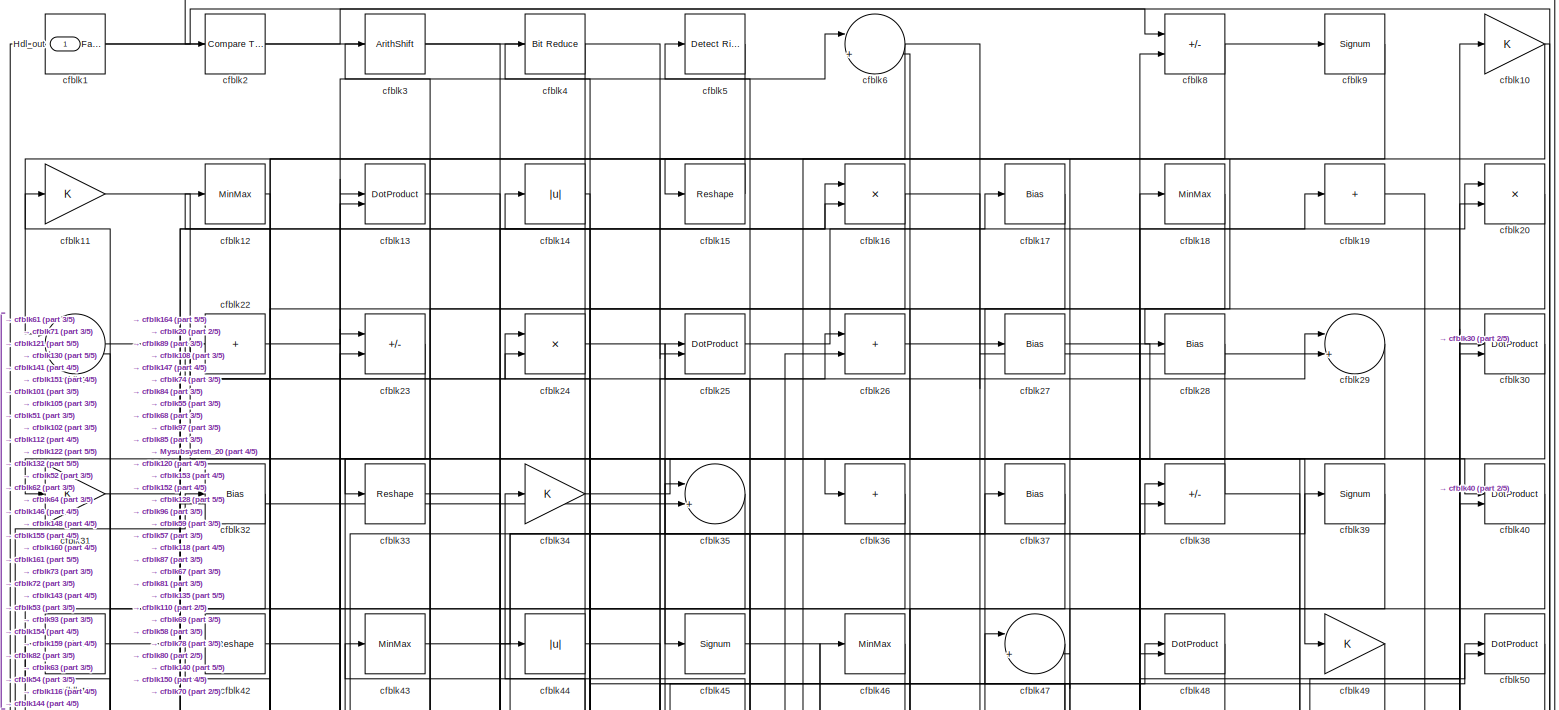
[diagram: root canvas - part 1/5, full width, top band]
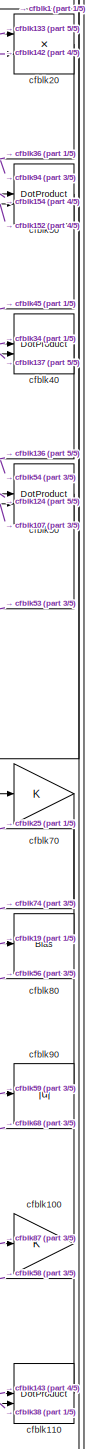
[diagram: root canvas - part 2/5, middle right region]
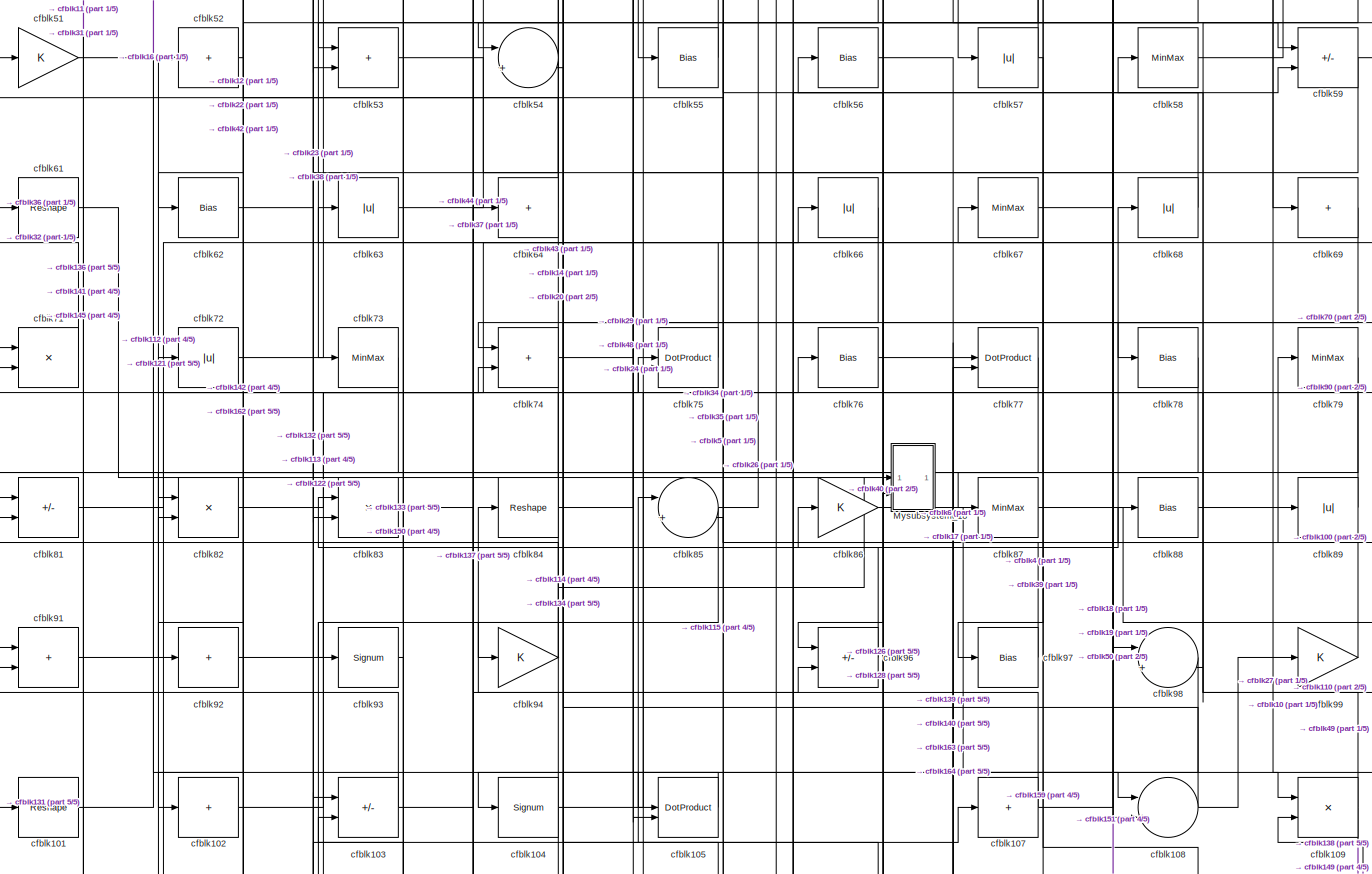
[diagram: root canvas - part 3/5, full width, middle band]
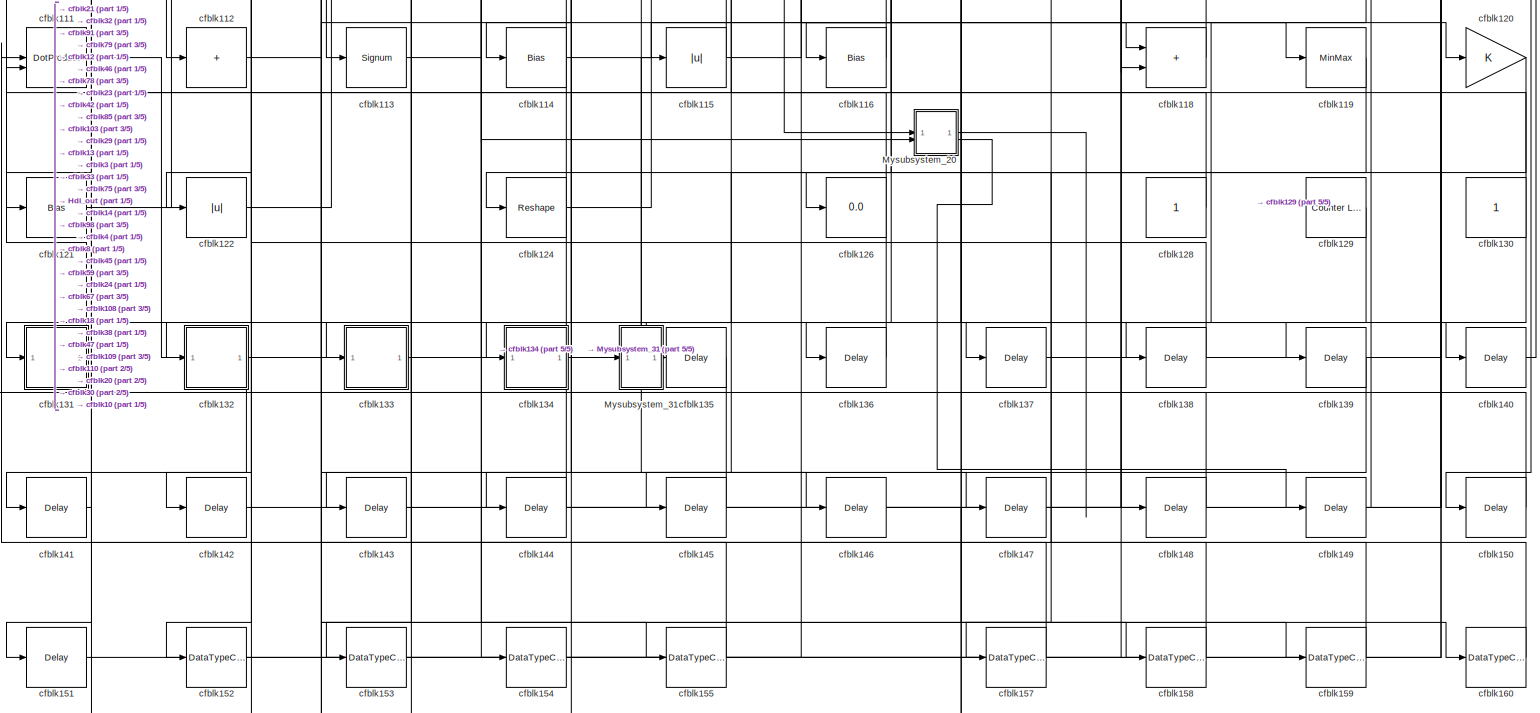
[diagram: root canvas - part 4/5, full width, bottom band]
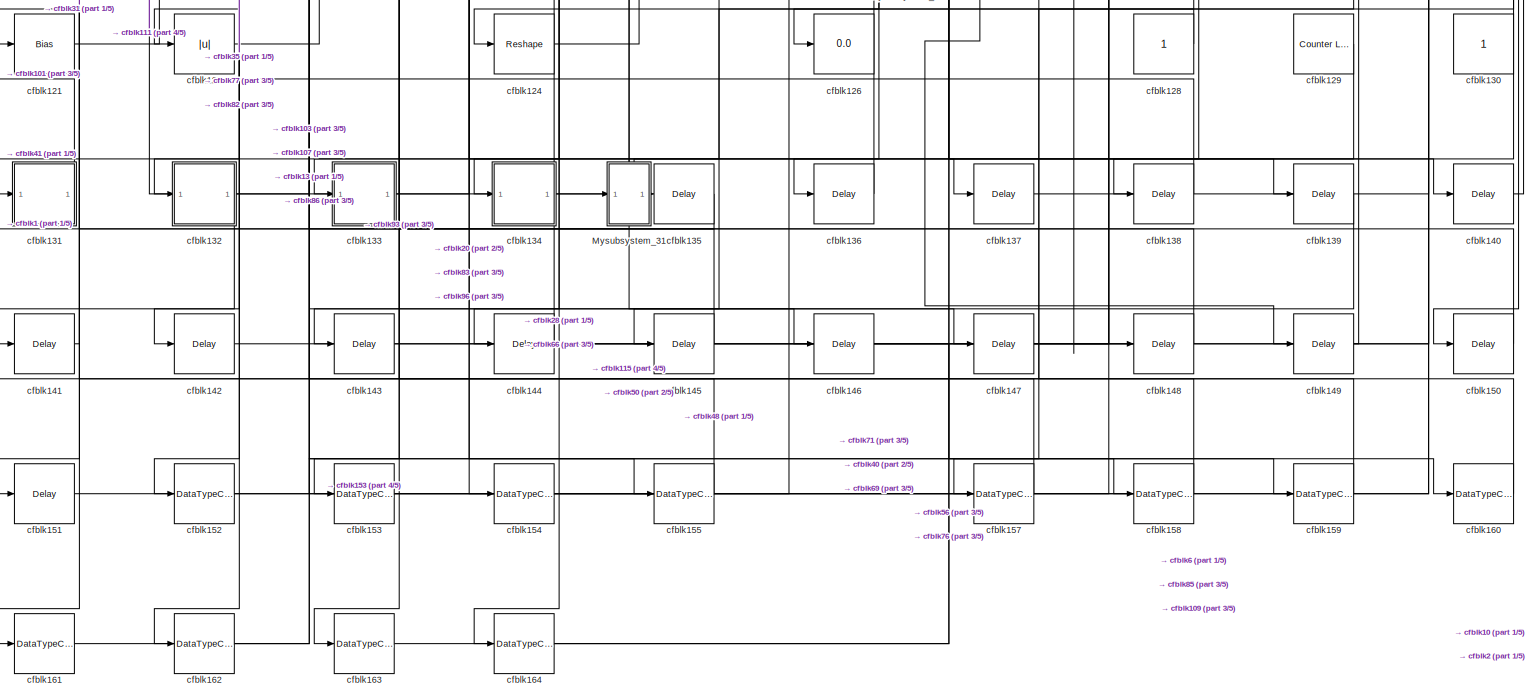
[diagram: root canvas - part 5/5, full width, bottom band]
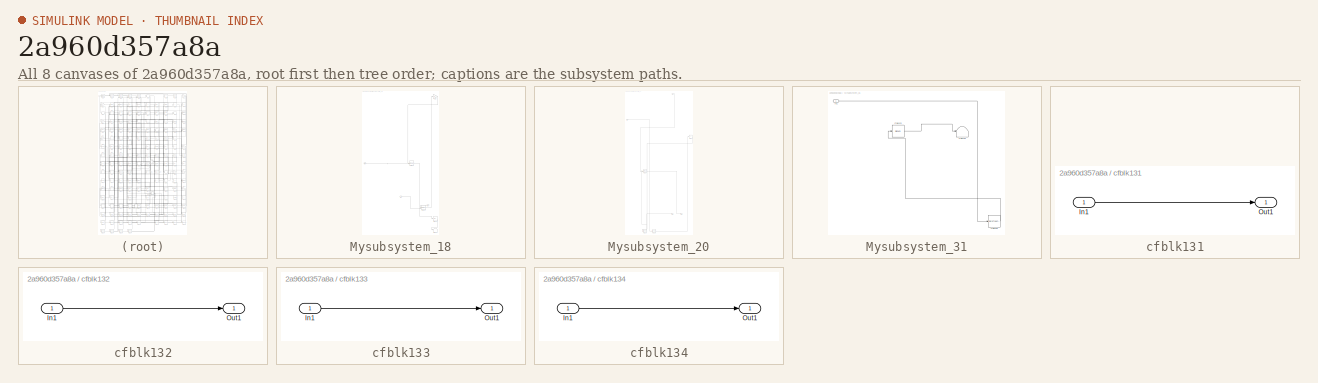
[diagram: thumbnail index - all 8 canvases of the model, root first then tree order]
MODEL slx_2a960d357a8a
KIND model
CONFIG AbsTol = auto
CONFIG EnableMultiTasking = off
CONFIG FixedStep = auto
CONFIG MaxStep = auto
CONFIG MinStep = auto
CONFIG RelTol = 1e-3
CONFIG SampleTimeConstraint = Unconstrained
CONFIG SolverName = VariableStepAuto
CONFIG StartTime = 0.0
CONFIG StopTime = 10.0
BLOCK [Outport] Hdl_out
  OutDataTypeStr = uint8
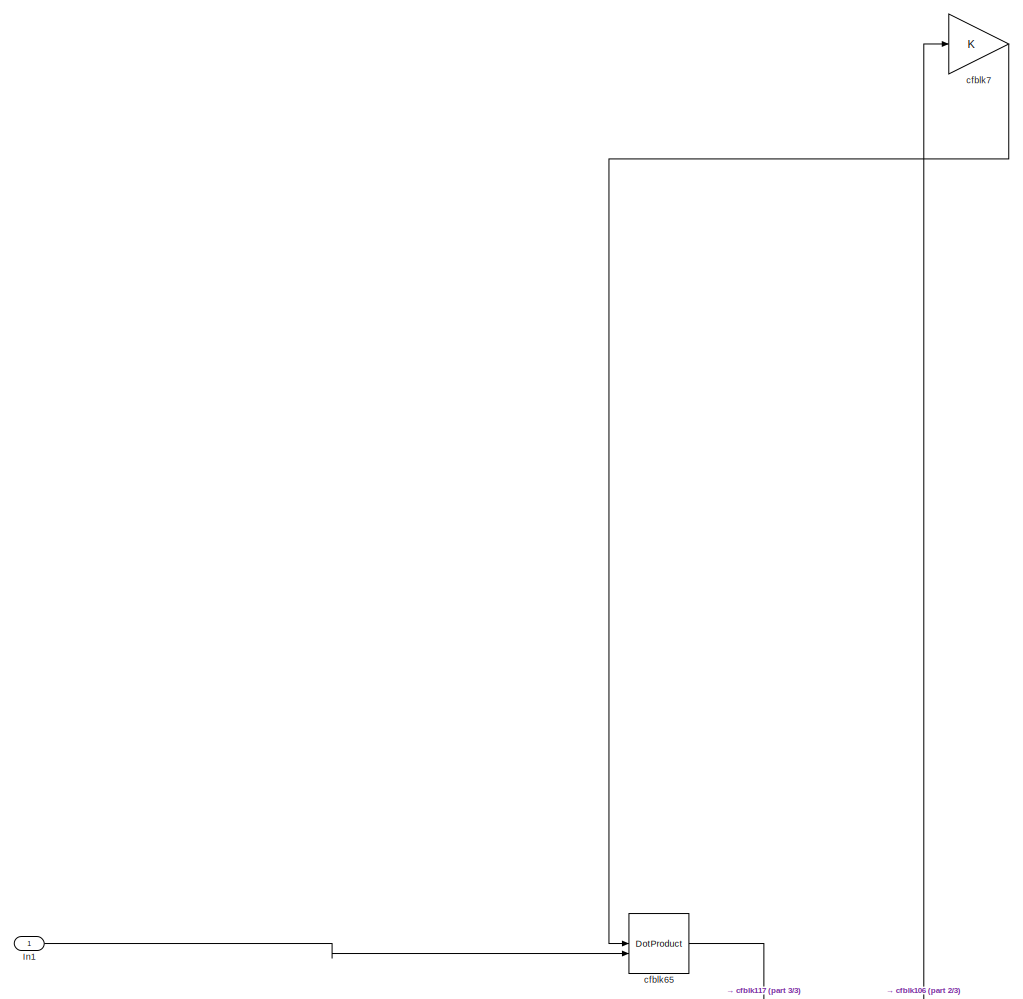
[diagram: Mysubsystem_18 - part 1/3, full width, top band]
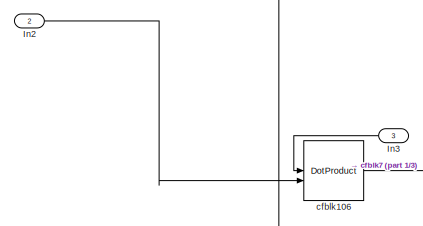
[diagram: Mysubsystem_18 - part 2/3, bottom right region]
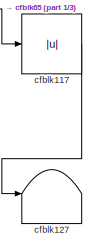
[diagram: Mysubsystem_18 - part 3/3, bottom right region]
BLOCK [SubSystem] Mysubsystem_18
  RTWFcnName = Mysubsystem_18
  RTWFcnNameOpts = User specified
  RTWFileNameOpts = Use function name
  RTWSystemCode = Reusable function
  TreatAsAtomicUnit = on
BLOCK [Inport] Mysubsystem_18/In1
BLOCK [Inport] Mysubsystem_18/In2
  Port = 2
BLOCK [Inport] Mysubsystem_18/In3
  Port = 3
BLOCK [DotProduct] Mysubsystem_18/cfblk106
  OutDataTypeStr = Inherit: Inherit via internal rule
BLOCK [Abs] Mysubsystem_18/cfblk117
  SaturateOnIntegerOverflow = off
BLOCK [Terminator] Mysubsystem_18/cfblk127
BLOCK [DotProduct] Mysubsystem_18/cfblk65
  OutDataTypeStr = Inherit: Inherit via internal rule
BLOCK [Gain] Mysubsystem_18/cfblk7
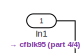
[diagram: Mysubsystem_20 - part 1/4, top right region]
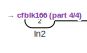
[diagram: Mysubsystem_20 - part 2/4, top left region]
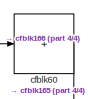
[diagram: Mysubsystem_20 - part 3/4, top right region]
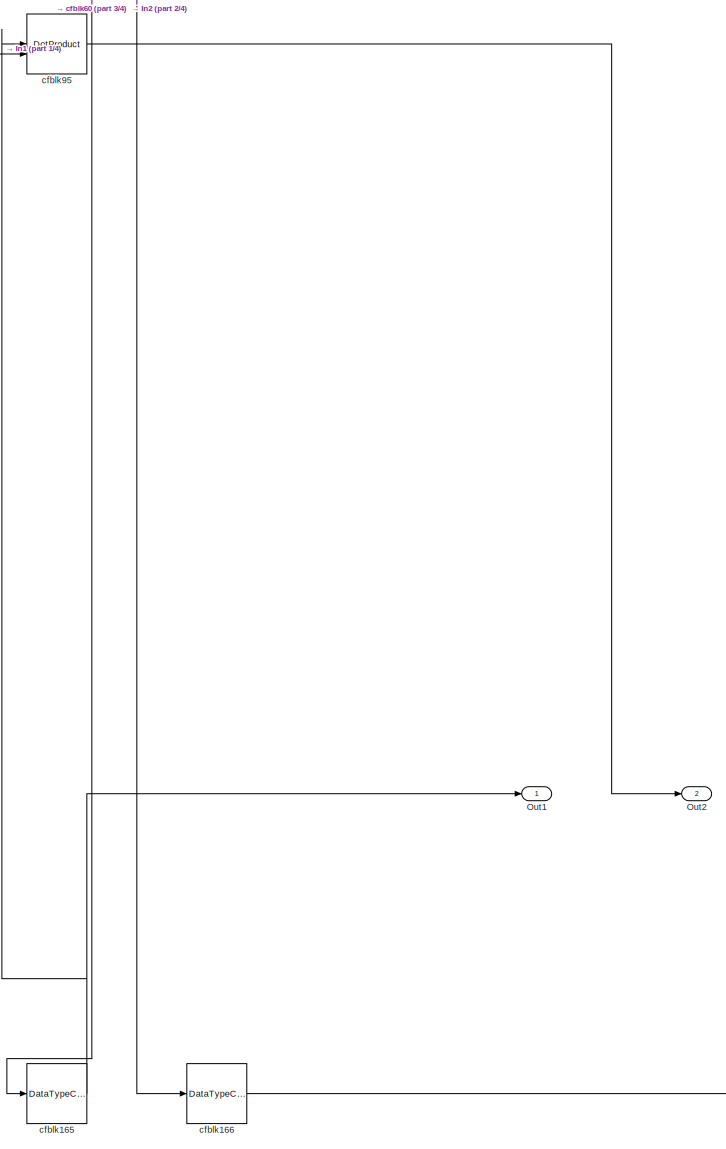
[diagram: Mysubsystem_20 - part 4/4, bottom center region]
BLOCK [SubSystem] Mysubsystem_20
  RTWFcnName = Mysubsystem_20
  RTWFcnNameOpts = User specified
  RTWFileNameOpts = Use function name
  RTWSystemCode = Reusable function
  TreatAsAtomicUnit = on
BLOCK [Inport] Mysubsystem_20/In1
BLOCK [Inport] Mysubsystem_20/In2
  Port = 2
BLOCK [Outport] Mysubsystem_20/Out1
BLOCK [Outport] Mysubsystem_20/Out2
  Port = 2
BLOCK [DataTypeConversion] Mysubsystem_20/cfblk165
  RndMeth = Floor
  SaturateOnIntegerOverflow = off
BLOCK [DataTypeConversion] Mysubsystem_20/cfblk166
  OutDataTypeStr = uint8
  RndMeth = Floor
  SaturateOnIntegerOverflow = off
BLOCK [Sum] Mysubsystem_20/cfblk60
  IconShape = rectangular
  Inputs = +
BLOCK [DotProduct] Mysubsystem_20/cfblk95
  OutDataTypeStr = Inherit: Inherit via internal rule
BLOCK [SubSystem] Mysubsystem_31
  RTWFcnName = Mysubsystem_31
  RTWFcnNameOpts = User specified
  RTWFileNameOpts = Use function name
  RTWSystemCode = Reusable function
  TreatAsAtomicUnit = on
BLOCK [Inport] Mysubsystem_31/In1
BLOCK [Signum] Mysubsystem_31/cfblk123
BLOCK [Terminator] Mysubsystem_31/cfblk125
BLOCK [DataTypeConversion] Mysubsystem_31/cfblk156
  OutDataTypeStr = uint8
  RndMeth = Floor
  SaturateOnIntegerOverflow = off
BLOCK [Reference] cfblk1  REF=hdlsllib/Logic and Bit
Operations/Detect Fall
Negative
  SourceBlock = hdlsllib/Logic and Bit\nOperations/Detect Fall\nNegative
  SourceType = Detect Fall Negative
BLOCK [Gain] cfblk10
  OutDataTypeStr = uint8
BLOCK [Gain] cfblk100
  OutDataTypeStr = uint8
BLOCK [Reshape] cfblk101
BLOCK [Sum] cfblk102
  IconShape = rectangular
  Inputs = +
  OutDataTypeStr = uint8
BLOCK [Sum] cfblk103
  IconShape = rectangular
  Inputs = +-
  OutDataTypeStr = uint8
BLOCK [Signum] cfblk104
BLOCK [DotProduct] cfblk105
  OutDataTypeStr = uint8
BLOCK [Sum] cfblk107
  IconShape = rectangular
  Inputs = +
  OutDataTypeStr = uint8
BLOCK [Sum] cfblk108
  Inputs = |++
  OutDataTypeStr = uint8
BLOCK [Product] cfblk109
  Inputs = */
  OutDataTypeStr = uint8
  RndMeth = Zero
  SaturateOnIntegerOverflow = on
BLOCK [Gain] cfblk11
  OutDataTypeStr = uint8
BLOCK [DotProduct] cfblk110
  OutDataTypeStr = uint8
BLOCK [DotProduct] cfblk111
  OutDataTypeStr = uint8
BLOCK [Sum] cfblk112
  IconShape = rectangular
  Inputs = +
  OutDataTypeStr = uint8
BLOCK [Signum] cfblk113
BLOCK [Bias] cfblk114
  Bias = 0.0
  SaturateOnIntegerOverflow = off
BLOCK [Abs] cfblk115
  OutDataTypeStr = uint8
  SaturateOnIntegerOverflow = off
BLOCK [Bias] cfblk116
  Bias = 0.0
  SaturateOnIntegerOverflow = off
BLOCK [Sum] cfblk118
  IconShape = rectangular
  OutDataTypeStr = uint8
BLOCK [MinMax] cfblk119
  OutDataTypeStr = uint8
BLOCK [MinMax] cfblk12
  OutDataTypeStr = uint8
BLOCK [Gain] cfblk120
  OutDataTypeStr = uint8
BLOCK [Bias] cfblk121
  Bias = 0.0
  SaturateOnIntegerOverflow = off
BLOCK [Abs] cfblk122
  OutDataTypeStr = uint8
  SaturateOnIntegerOverflow = off
BLOCK [Reshape] cfblk124
BLOCK [Display] cfblk126
  Decimation = 1
BLOCK [Constant] cfblk128
  OutDataTypeStr = uint8
  SampleTime = -1
BLOCK [Reference] cfblk129  REF=hdlsllib/Sources/Counter
Limited
  SourceBlock = hdlsllib/Sources/Counter\nLimited
  SourceType = Counter Limited
BLOCK [DotProduct] cfblk13
  OutDataTypeStr = uint8
BLOCK [Constant] cfblk130
  OutDataTypeStr = uint8
  SampleTime = -1
BLOCK [SubSystem] cfblk131
  LibrarySourceBlock = hdlsllib/Ports &\nSubsystems/Subsystem
BLOCK [Inport] cfblk131/In1
BLOCK [Outport] cfblk131/Out1
BLOCK [SubSystem] cfblk132
  LibrarySourceBlock = hdlsllib/Ports &\nSubsystems/Subsystem
BLOCK [Inport] cfblk132/In1
BLOCK [Outport] cfblk132/Out1
BLOCK [SubSystem] cfblk133
  LibrarySourceBlock = hdlsllib/Ports &\nSubsystems/Subsystem
BLOCK [Inport] cfblk133/In1
BLOCK [Outport] cfblk133/Out1
BLOCK [SubSystem] cfblk134
  LibrarySourceBlock = hdlsllib/Ports &\nSubsystems/Subsystem
BLOCK [Inport] cfblk134/In1
BLOCK [Outport] cfblk134/Out1
BLOCK [Delay] cfblk135
  InputPortMap = u0
  SampleTime = 1
BLOCK [Delay] cfblk136
  InputPortMap = u0
  SampleTime = 1
BLOCK [Delay] cfblk137
  InputPortMap = u0
  SampleTime = 1
BLOCK [Delay] cfblk138
  InputPortMap = u0
  SampleTime = 1
BLOCK [Delay] cfblk139
  InputPortMap = u0
  SampleTime = 1
BLOCK [Abs] cfblk14
  OutDataTypeStr = uint8
  SaturateOnIntegerOverflow = off
BLOCK [Delay] cfblk140
  InputPortMap = u0
  SampleTime = 1
BLOCK [Delay] cfblk141
  InputPortMap = u0
  SampleTime = 1
BLOCK [Delay] cfblk142
  InputPortMap = u0
  SampleTime = 1
BLOCK [Delay] cfblk143
  InputPortMap = u0
  SampleTime = 1
BLOCK [Delay] cfblk144
  InputPortMap = u0
  SampleTime = 1
BLOCK [Delay] cfblk145
  InputPortMap = u0
  SampleTime = 1
BLOCK [Delay] cfblk146
  InputPortMap = u0
  SampleTime = 1
BLOCK [Delay] cfblk147
  InputPortMap = u0
  SampleTime = 1
BLOCK [Delay] cfblk148
  InputPortMap = u0
  SampleTime = 1
BLOCK [Delay] cfblk149
  InputPortMap = u0
  SampleTime = 1
BLOCK [Reshape] cfblk15
BLOCK [Delay] cfblk150
  InputPortMap = u0
  SampleTime = 1
BLOCK [Delay] cfblk151
  InputPortMap = u0
  SampleTime = 1
BLOCK [DataTypeConversion] cfblk152
  OutDataTypeStr = uint8
  RndMeth = Floor
  SaturateOnIntegerOverflow = off
BLOCK [DataTypeConversion] cfblk153
  OutDataTypeStr = uint8
  RndMeth = Floor
  SaturateOnIntegerOverflow = off
BLOCK [DataTypeConversion] cfblk154
  OutDataTypeStr = uint8
  RndMeth = Floor
  SaturateOnIntegerOverflow = off
BLOCK [DataTypeConversion] cfblk155
  OutDataTypeStr = uint8
  RndMeth = Floor
  SaturateOnIntegerOverflow = off
BLOCK [DataTypeConversion] cfblk157
  OutDataTypeStr = uint8
  RndMeth = Floor
  SaturateOnIntegerOverflow = off
BLOCK [DataTypeConversion] cfblk158
  OutDataTypeStr = uint8
  RndMeth = Floor
  SaturateOnIntegerOverflow = off
BLOCK [DataTypeConversion] cfblk159
  OutDataTypeStr = uint8
  RndMeth = Floor
  SaturateOnIntegerOverflow = off
BLOCK [Product] cfblk16
  Inputs = */
  OutDataTypeStr = uint8
  RndMeth = Zero
  SaturateOnIntegerOverflow = on
BLOCK [DataTypeConversion] cfblk160
  OutDataTypeStr = uint8
  RndMeth = Floor
  SaturateOnIntegerOverflow = off
BLOCK [DataTypeConversion] cfblk161
  OutDataTypeStr = uint8
  RndMeth = Floor
  SaturateOnIntegerOverflow = off
BLOCK [DataTypeConversion] cfblk162
  OutDataTypeStr = uint8
  RndMeth = Floor
  SaturateOnIntegerOverflow = off
BLOCK [DataTypeConversion] cfblk163
  OutDataTypeStr = uint8
  RndMeth = Floor
  SaturateOnIntegerOverflow = off
BLOCK [DataTypeConversion] cfblk164
  OutDataTypeStr = uint8
  RndMeth = Floor
  SaturateOnIntegerOverflow = off
BLOCK [Bias] cfblk17
  Bias = 0.0
  SaturateOnIntegerOverflow = off
BLOCK [MinMax] cfblk18
  OutDataTypeStr = uint8
BLOCK [Sum] cfblk19
  IconShape = rectangular
  Inputs = +
  OutDataTypeStr = uint8
BLOCK [Reference] cfblk2  REF=hdlsllib/Logic and Bit
Operations/Compare
To Constant
  SourceBlock = hdlsllib/Logic and Bit\nOperations/Compare\nTo Constant
  SourceType = Compare To Constant
BLOCK [Product] cfblk20
  Inputs = */
  OutDataTypeStr = uint8
  RndMeth = Zero
  SaturateOnIntegerOverflow = on
BLOCK [Sum] cfblk21
  Inputs = |++
  OutDataTypeStr = uint8
BLOCK [Sum] cfblk22
  IconShape = rectangular
  Inputs = +
  OutDataTypeStr = uint8
BLOCK [Sum] cfblk23
  IconShape = rectangular
  Inputs = +-
  OutDataTypeStr = uint8
BLOCK [Product] cfblk24
  Inputs = */
  OutDataTypeStr = uint8
  RndMeth = Zero
  SaturateOnIntegerOverflow = on
BLOCK [DotProduct] cfblk25
  OutDataTypeStr = uint8
BLOCK [Sum] cfblk26
  IconShape = rectangular
  OutDataTypeStr = uint8
BLOCK [Bias] cfblk27
  Bias = 0.0
  SaturateOnIntegerOverflow = off
BLOCK [Bias] cfblk28
  Bias = 0.0
  SaturateOnIntegerOverflow = off
BLOCK [Sum] cfblk29
  Inputs = |++
  OutDataTypeStr = uint8
BLOCK [ArithShift] cfblk3
  BitShiftNumber = 8
  InputPortMap = u0
BLOCK [DotProduct] cfblk30
  OutDataTypeStr = uint8
BLOCK [Gain] cfblk31
  OutDataTypeStr = uint8
BLOCK [Bias] cfblk32
  Bias = 0.0
  SaturateOnIntegerOverflow = off
BLOCK [Reshape] cfblk33
BLOCK [Gain] cfblk34
  OutDataTypeStr = uint8
BLOCK [Sum] cfblk35
  Inputs = |++
  OutDataTypeStr = uint8
BLOCK [Sum] cfblk36
  IconShape = rectangular
  Inputs = +
  OutDataTypeStr = uint8
BLOCK [Bias] cfblk37
  Bias = 0.0
  SaturateOnIntegerOverflow = off
BLOCK [Sum] cfblk38
  IconShape = rectangular
  Inputs = +-
  OutDataTypeStr = uint8
BLOCK [Signum] cfblk39
BLOCK [Reference] cfblk4  REF=hdlsllib/Logic and Bit
Operations/Bit Reduce
  SourceBlock = hdlsllib/Logic and Bit\nOperations/Bit Reduce
  SourceType = Bit Reduce
BLOCK [DotProduct] cfblk40
  OutDataTypeStr = uint8
BLOCK [Bias] cfblk41
  Bias = 0.0
  SaturateOnIntegerOverflow = off
BLOCK [Reshape] cfblk42
BLOCK [MinMax] cfblk43
  OutDataTypeStr = uint8
BLOCK [Abs] cfblk44
  OutDataTypeStr = uint8
  SaturateOnIntegerOverflow = off
BLOCK [Signum] cfblk45
BLOCK [MinMax] cfblk46
  OutDataTypeStr = uint8
BLOCK [Sum] cfblk47
  Inputs = |++
  OutDataTypeStr = uint8
BLOCK [DotProduct] cfblk48
  OutDataTypeStr = uint8
BLOCK [Gain] cfblk49
  OutDataTypeStr = uint8
BLOCK [Reference] cfblk5  REF=hdlsllib/Logic and Bit
Operations/Detect Rise
Nonnegative
  SourceBlock = hdlsllib/Logic and Bit\nOperations/Detect Rise\nNonnegative
  SourceType = Detect Rise Nonnegative
BLOCK [DotProduct] cfblk50
  OutDataTypeStr = uint8
BLOCK [Gain] cfblk51
  OutDataTypeStr = uint8
BLOCK [Sum] cfblk52
  IconShape = rectangular
  Inputs = +
  OutDataTypeStr = uint8
BLOCK [Sum] cfblk53
  IconShape = rectangular
  OutDataTypeStr = uint8
BLOCK [Sum] cfblk54
  Inputs = |++
  OutDataTypeStr = uint8
BLOCK [Bias] cfblk55
  Bias = 0.0
  SaturateOnIntegerOverflow = off
BLOCK [Bias] cfblk56
  Bias = 0.0
  SaturateOnIntegerOverflow = off
BLOCK [Abs] cfblk57
  OutDataTypeStr = uint8
  SaturateOnIntegerOverflow = off
BLOCK [MinMax] cfblk58
  OutDataTypeStr = uint8
BLOCK [Sum] cfblk59
  IconShape = rectangular
  Inputs = +-
  OutDataTypeStr = uint8
BLOCK [Sum] cfblk6
  Inputs = |++
  OutDataTypeStr = uint8
BLOCK [Reshape] cfblk61
BLOCK [Bias] cfblk62
  Bias = 0.0
  SaturateOnIntegerOverflow = off
BLOCK [Abs] cfblk63
  OutDataTypeStr = uint8
  SaturateOnIntegerOverflow = off
BLOCK [Sum] cfblk64
  IconShape = rectangular
  Inputs = +
  OutDataTypeStr = uint8
BLOCK [Abs] cfblk66
  OutDataTypeStr = uint8
  SaturateOnIntegerOverflow = off
BLOCK [MinMax] cfblk67
  OutDataTypeStr = uint8
BLOCK [Abs] cfblk68
  OutDataTypeStr = uint8
  SaturateOnIntegerOverflow = off
BLOCK [Sum] cfblk69
  IconShape = rectangular
  Inputs = +
  OutDataTypeStr = uint8
BLOCK [Gain] cfblk70
  OutDataTypeStr = uint8
BLOCK [Product] cfblk71
  Inputs = */
  OutDataTypeStr = uint8
  RndMeth = Zero
  SaturateOnIntegerOverflow = on
BLOCK [Abs] cfblk72
  OutDataTypeStr = uint8
  SaturateOnIntegerOverflow = off
BLOCK [MinMax] cfblk73
  OutDataTypeStr = uint8
BLOCK [Sum] cfblk74
  IconShape = rectangular
  OutDataTypeStr = uint8
BLOCK [DotProduct] cfblk75
  OutDataTypeStr = uint8
BLOCK [Bias] cfblk76
  Bias = 0.0
  SaturateOnIntegerOverflow = off
BLOCK [DotProduct] cfblk77
  OutDataTypeStr = uint8
BLOCK [Bias] cfblk78
  Bias = 0.0
  SaturateOnIntegerOverflow = off
BLOCK [MinMax] cfblk79
  OutDataTypeStr = uint8
BLOCK [Sum] cfblk8
  IconShape = rectangular
  Inputs = +-
  OutDataTypeStr = uint8
BLOCK [Bias] cfblk80
  Bias = 0.0
  SaturateOnIntegerOverflow = off
BLOCK [Sum] cfblk81
  IconShape = rectangular
  Inputs = +-
  OutDataTypeStr = uint8
BLOCK [Product] cfblk82
  Inputs = */
  OutDataTypeStr = uint8
  RndMeth = Zero
  SaturateOnIntegerOverflow = on
BLOCK [Product] cfblk83
  Inputs = */
  OutDataTypeStr = uint8
  RndMeth = Zero
  SaturateOnIntegerOverflow = on
BLOCK [Reshape] cfblk84
BLOCK [Sum] cfblk85
  Inputs = |++
  OutDataTypeStr = uint8
BLOCK [Gain] cfblk86
  OutDataTypeStr = uint8
BLOCK [MinMax] cfblk87
  OutDataTypeStr = uint8
BLOCK [Bias] cfblk88
  Bias = 0.0
  SaturateOnIntegerOverflow = off
BLOCK [Abs] cfblk89
  OutDataTypeStr = uint8
  SaturateOnIntegerOverflow = off
BLOCK [Signum] cfblk9
BLOCK [Abs] cfblk90
  OutDataTypeStr = uint8
  SaturateOnIntegerOverflow = off
BLOCK [Sum] cfblk91
  IconShape = rectangular
  OutDataTypeStr = uint8
BLOCK [Sum] cfblk92
  IconShape = rectangular
  Inputs = +
  OutDataTypeStr = uint8
BLOCK [Signum] cfblk93
BLOCK [Gain] cfblk94
  OutDataTypeStr = uint8
BLOCK [Sum] cfblk96
  IconShape = rectangular
  Inputs = +-
  OutDataTypeStr = uint8
BLOCK [Bias] cfblk97
  Bias = 0.0
  SaturateOnIntegerOverflow = off
BLOCK [Sum] cfblk98
  Inputs = |++
  OutDataTypeStr = uint8
BLOCK [Gain] cfblk99
  OutDataTypeStr = uint8
LINE Mysubsystem_18/In1:1 -> Mysubsystem_18/cfblk65:2
LINE Mysubsystem_18/In2:1 -> Mysubsystem_18/cfblk106:2
LINE Mysubsystem_18/In3:1 -> Mysubsystem_18/cfblk106:1
LINE Mysubsystem_18/cfblk106:1 -> Mysubsystem_18/cfblk7:1
LINE Mysubsystem_18/cfblk117:1 -> Mysubsystem_18/cfblk127:1
LINE Mysubsystem_18/cfblk65:1 -> Mysubsystem_18/cfblk117:1
LINE Mysubsystem_18/cfblk7:1 -> Mysubsystem_18/cfblk65:1
LINE Mysubsystem_20/In1:1 -> Mysubsystem_20/cfblk95:2
LINE Mysubsystem_20/In2:1 -> Mysubsystem_20/cfblk166:1
NET Mysubsystem_20/cfblk165:1 -> Mysubsystem_20/Out1:1, Mysubsystem_20/cfblk95:1
LINE Mysubsystem_20/cfblk166:1 -> Mysubsystem_20/cfblk60:1
LINE Mysubsystem_20/cfblk60:1 -> Mysubsystem_20/cfblk165:1
LINE Mysubsystem_20/cfblk95:1 -> Mysubsystem_20/Out2:1
LINE Mysubsystem_20:1 -> cfblk148:1
LINE Mysubsystem_20:2 -> cfblk149:1
LINE Mysubsystem_31/In1:1 -> Mysubsystem_31/cfblk156:1
LINE Mysubsystem_31/cfblk123:1 -> Mysubsystem_31/cfblk125:1
LINE Mysubsystem_31/cfblk156:1 -> Mysubsystem_31/cfblk123:1
LINE cfblk100:1 -> cfblk68:1
LINE cfblk101:1 -> cfblk26:1
LINE cfblk102:1 -> cfblk64:1
NET cfblk103:1 -> cfblk81:2, cfblk88:1
LINE cfblk104:1 -> cfblk76:1
LINE cfblk105:1 -> cfblk104:1
NET cfblk107:1 -> cfblk50:2, cfblk84:1, cfblk89:1
NET cfblk108:1 -> cfblk54:2, cfblk99:1
NET cfblk109:1 -> cfblk138:1, cfblk72:1, cfblk75:1
NET cfblk10:1 -> cfblk132:1, cfblk150:1, cfblk33:1
LINE cfblk110:1 -> cfblk58:1
LINE cfblk111:1 -> Mysubsystem_31:1
NET cfblk112:1 -> cfblk118:1, cfblk12:1
LINE cfblk113:1 -> cfblk75:2
LINE cfblk114:1 -> cfblk119:1
NET cfblk115:1 -> cfblk59:2, cfblk85:1
LINE cfblk116:1 -> cfblk24:1
LINE cfblk118:1 -> cfblk47:1
LINE cfblk119:1 -> cfblk157:1
LINE cfblk11:1 -> cfblk49:1
LINE cfblk120:1 -> cfblk145:1
LINE cfblk121:1 -> cfblk66:1
LINE cfblk122:1 -> cfblk86:1
LINE cfblk124:1 -> cfblk50:1
NET cfblk128:1 -> cfblk124:1, cfblk6:2, cfblk85:2
LINE cfblk129:1 -> cfblk153:1
LINE cfblk12:1 -> cfblk82:1
NET cfblk130:1 -> cfblk131:1, cfblk41:1
LINE cfblk131/In1:1 -> cfblk131/Out1:1
LINE cfblk131:1 -> cfblk101:1
LINE cfblk132/In1:1 -> cfblk132/Out1:1
NET cfblk132:1 -> cfblk107:1, cfblk161:1
LINE cfblk133/In1:1 -> cfblk133/Out1:1
NET cfblk133:1 -> cfblk20:1, cfblk96:2
LINE cfblk134/In1:1 -> cfblk134/Out1:1
LINE cfblk134:1 -> cfblk115:1
LINE cfblk135:1 -> cfblk1:1
LINE cfblk136:1 -> cfblk71:2
LINE cfblk137:1 -> cfblk40:2
LINE cfblk138:1 -> cfblk82:2
LINE cfblk139:1 -> cfblk163:1
LINE cfblk13:1 -> cfblk159:1
LINE cfblk140:1 -> cfblk2:1
LINE cfblk141:1 -> cfblk21:2
LINE cfblk142:1 -> cfblk20:2
LINE cfblk143:1 -> cfblk110:1
NET cfblk144:1 -> Hdl_out:1, cfblk38:2
LINE cfblk145:1 -> cfblk91:2
LINE cfblk146:1 -> cfblk160:1
LINE cfblk147:1 -> cfblk8:2
LINE cfblk148:1 -> cfblk23:1
LINE cfblk149:1 -> cfblk109:2
LINE cfblk14:1 -> cfblk144:1
LINE cfblk150:1 -> cfblk103:2
LINE cfblk151:1 -> cfblk108:2
NET cfblk152:1 -> cfblk158:1, cfblk30:2
LINE cfblk153:1 -> cfblk46:1
LINE cfblk154:1 -> cfblk30:1
LINE cfblk155:1 -> cfblk3:1
LINE cfblk157:1 -> cfblk111:1
LINE cfblk158:1 -> cfblk111:2
LINE cfblk159:1 -> cfblk67:1
LINE cfblk15:1 -> cfblk21:1
LINE cfblk160:1 -> cfblk13:1
LINE cfblk161:1 -> cfblk13:2
LINE cfblk162:1 -> cfblk103:1
LINE cfblk163:1 -> cfblk77:1
LINE cfblk164:1 -> cfblk77:2
NET cfblk16:1 -> cfblk29:2, cfblk93:1
LINE cfblk17:1 -> cfblk57:1
NET cfblk18:1 -> cfblk118:2, cfblk62:1
LINE cfblk19:1 -> cfblk80:1
LINE cfblk1:1 -> cfblk70:1
NET cfblk20:1 -> cfblk36:1, cfblk94:1
LINE cfblk21:1 -> cfblk24:2
LINE cfblk22:1 -> cfblk6:1
LINE cfblk23:1 -> cfblk73:1
LINE cfblk24:1 -> cfblk55:1
LINE cfblk25:1 -> cfblk17:1
LINE cfblk26:1 -> cfblk27:1
LINE cfblk27:1 -> cfblk69:1
LINE cfblk28:1 -> cfblk164:1
NET cfblk29:1 -> cfblk143:1, cfblk48:2, cfblk53:2
LINE cfblk2:1 -> cfblk8:1
LINE cfblk30:1 -> cfblk45:1
NET cfblk31:1 -> cfblk105:1, cfblk121:1
NET cfblk32:1 -> cfblk151:1, cfblk81:1
LINE cfblk33:1 -> Mysubsystem_20:2
LINE cfblk34:1 -> cfblk40:1
LINE cfblk35:1 -> cfblk122:1
LINE cfblk36:1 -> cfblk61:1
LINE cfblk37:1 -> cfblk96:1
NET cfblk38:1 -> cfblk110:2, cfblk31:1
LINE cfblk39:1 -> cfblk87:1
LINE cfblk3:1 -> cfblk154:1
NET cfblk40:1 -> cfblk136:1, cfblk54:1
NET cfblk41:1 -> cfblk16:2, cfblk35:2
NET cfblk42:1 -> cfblk146:1, cfblk155:1
LINE cfblk43:1 -> cfblk39:1
LINE cfblk44:1 -> cfblk108:1
LINE cfblk45:1 -> cfblk120:1
LINE cfblk46:1 -> cfblk152:1
LINE cfblk47:1 -> cfblk116:1
LINE cfblk48:1 -> cfblk135:1
LINE cfblk49:1 -> cfblk78:1
LINE cfblk4:1 -> cfblk147:1
LINE cfblk50:1 -> cfblk53:1
LINE cfblk51:1 -> cfblk16:1
LINE cfblk52:1 -> cfblk22:1
LINE cfblk53:1 -> cfblk98:1
NET cfblk54:1 -> cfblk43:1, cfblk83:2
LINE cfblk55:1 -> cfblk34:1
LINE cfblk56:1 -> cfblk140:1
NET cfblk57:1 -> cfblk4:1, cfblk97:1
LINE cfblk58:1 -> cfblk10:1
NET cfblk59:1 -> cfblk105:2, cfblk90:1
LINE cfblk5:1 -> cfblk102:1
LINE cfblk61:1 -> Mysubsystem_18:1
NET cfblk62:1 -> cfblk23:2, cfblk92:1
LINE cfblk63:1 -> cfblk37:1
LINE cfblk64:1 -> cfblk42:1
LINE cfblk66:1 -> cfblk134:1
LINE cfblk67:1 -> cfblk19:1
LINE cfblk68:1 -> cfblk35:1
NET cfblk69:1 -> Mysubsystem_18:3, cfblk126:1, cfblk98:2
NET cfblk6:1 -> cfblk15:1, cfblk59:1
LINE cfblk70:1 -> cfblk74:1
LINE cfblk71:1 -> cfblk32:1
LINE cfblk72:1 -> cfblk38:1
LINE cfblk73:1 -> cfblk91:1
LINE cfblk74:1 -> cfblk48:1
LINE cfblk75:1 -> cfblk63:1
LINE cfblk76:1 -> cfblk139:1
LINE cfblk77:1 -> cfblk162:1
NET cfblk78:1 -> cfblk141:1, cfblk142:1
LINE cfblk79:1 -> cfblk112:1
LINE cfblk80:1 -> cfblk25:1
LINE cfblk81:1 -> cfblk18:1
LINE cfblk82:1 -> cfblk44:1
LINE cfblk83:1 -> cfblk137:1
NET cfblk84:1 -> cfblk11:1, cfblk29:1
NET cfblk85:1 -> cfblk113:1, cfblk26:2
LINE cfblk86:1 -> cfblk109:1
LINE cfblk87:1 -> cfblk100:1
LINE cfblk88:1 -> cfblk79:1
LINE cfblk89:1 -> cfblk14:1
NET cfblk8:1 -> Mysubsystem_20:1, cfblk9:1
LINE cfblk90:1 -> cfblk56:1
LINE cfblk91:1 -> cfblk52:1
LINE cfblk92:1 -> cfblk74:2
LINE cfblk93:1 -> cfblk133:1
NET cfblk94:1 -> Mysubsystem_18:2, cfblk71:1
LINE cfblk96:1 -> cfblk83:1
LINE cfblk97:1 -> cfblk5:1
LINE cfblk98:1 -> cfblk114:1
LINE cfblk99:1 -> cfblk51:1
NET cfblk9:1 -> cfblk25:2, cfblk28:1, cfblk47:2
note: NET lines group one-source signal fan-out (src -> all destinations, sorted); 1:1 wires keep LINE
